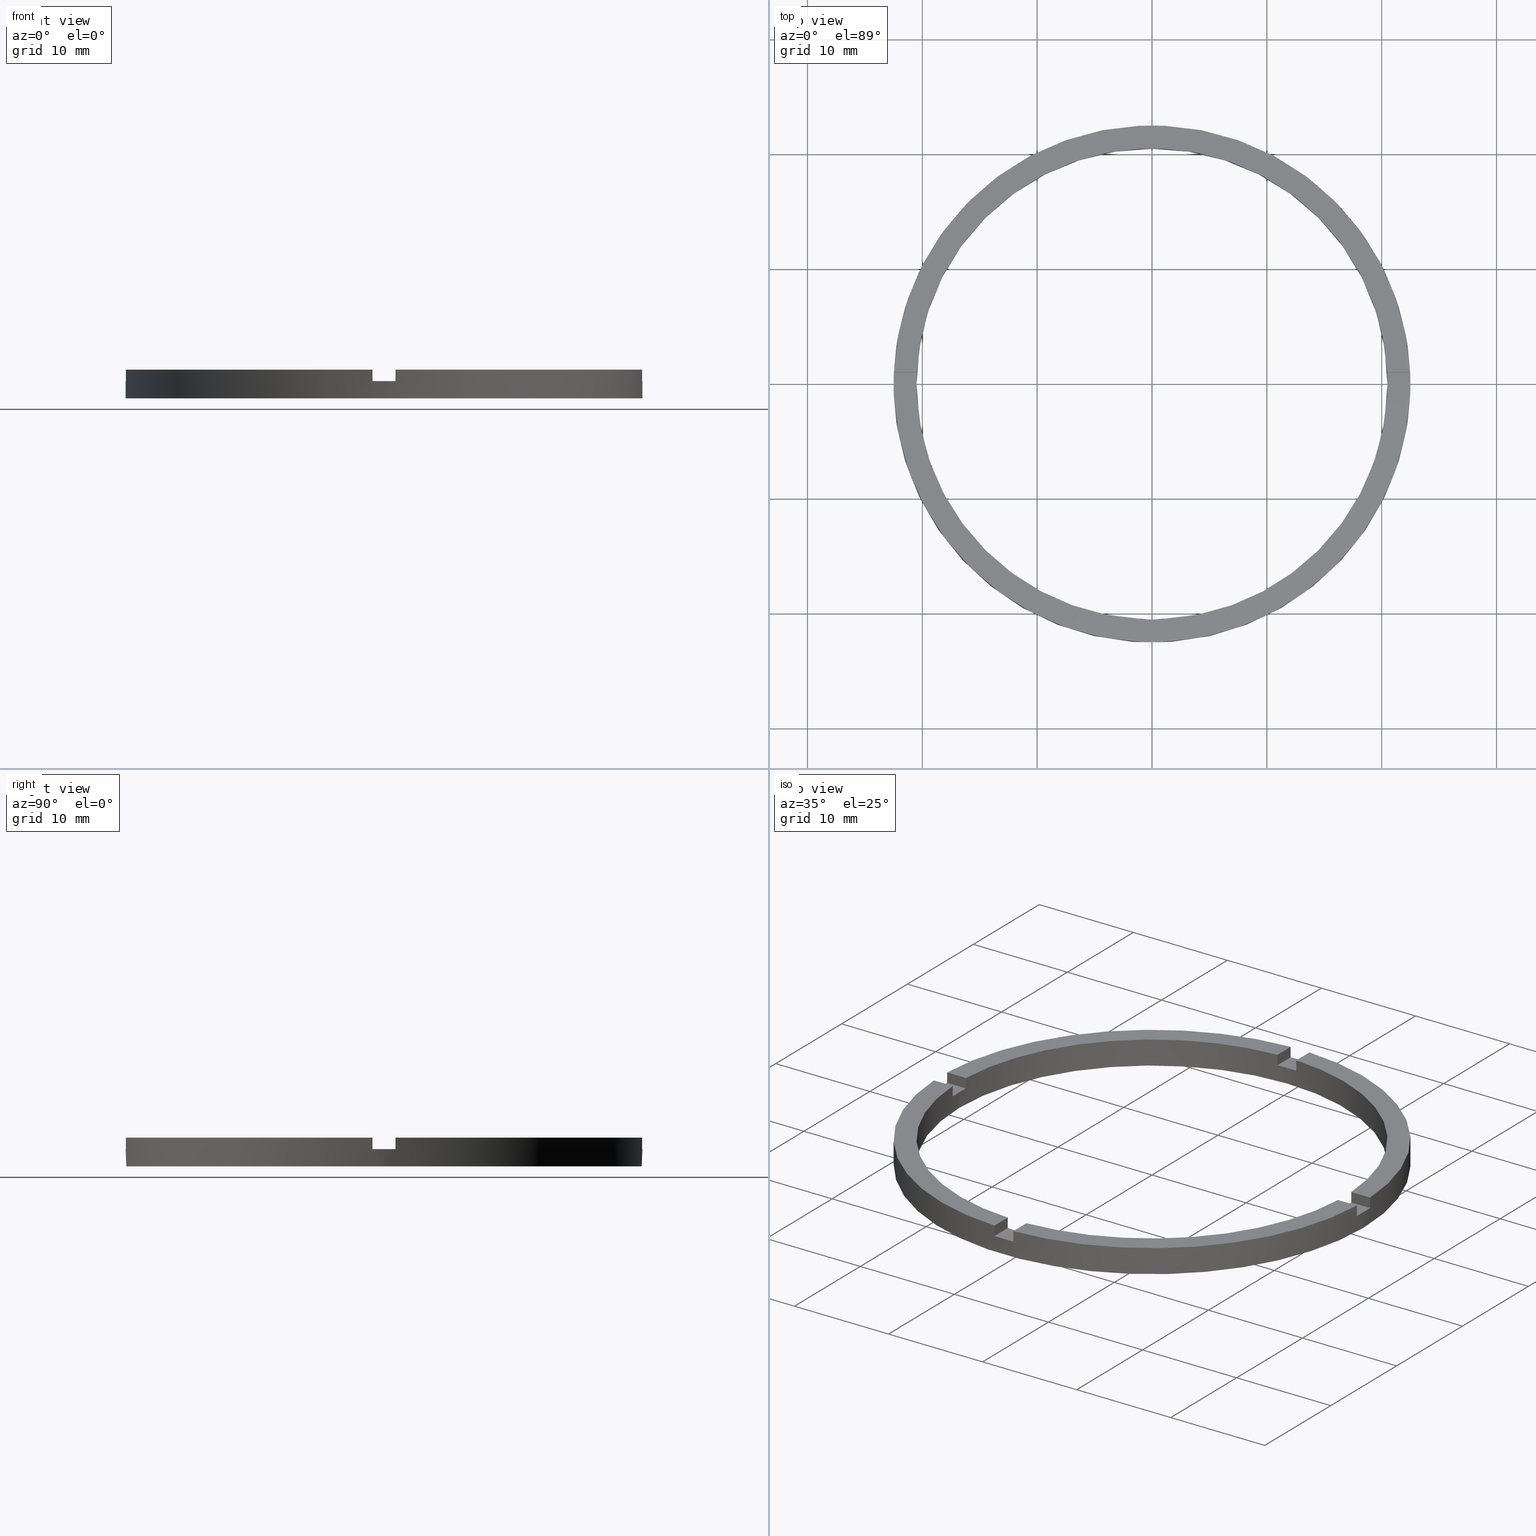
[diagram: canonical four-view strip — front | top / right | iso, engineering-drawing reading convention]
A machine part, canonical four-view strip (front | top / right | iso — engineering-drawing reading convention). The complete STEP part file that produces these views, byte-faithful:
ISO-10303-21;
HEADER;
FILE_DESCRIPTION (( 'STEP AP203' ),
    '1' );
FILE_NAME ('514094.step',
    '2024-12-26T02:36:57',
    ( 'MSI' ),
    ( '' ),
    'SwSTEP 2.0',
    'SolidWorks 2020',
    '' );
FILE_SCHEMA (( 'CONFIG_CONTROL_DESIGN' ));
ENDSEC;

DATA;
#1 = ORIENTED_EDGE ( 'NONE', *, *, #528, .T. ) ;
#2 = VECTOR ( 'NONE', #296, 1000.000000000000000 ) ;
#3 = DIRECTION ( 'NONE',  ( 1.000000000000000000, 0.000000000000000000, -0.000000000000000000 ) ) ;
#4 = EDGE_LOOP ( 'NONE', ( #435, #696, #80, #590, #433, #614 ) ) ;
#5 = CC_DESIGN_APPROVAL ( #569, ( #417 ) ) ;
#6 = CIRCLE ( 'NONE', #395, 20.50000000000000000 ) ;
#7 = EDGE_LOOP ( 'NONE', ( #562, #1, #261, #535 ) ) ;
#8 = LINE ( 'NONE', #312, #280 ) ;
#9 = APPLICATION_PROTOCOL_DEFINITION ( 'international standard', 'config_control_design', 1994, #136 ) ;
#10 = CC_DESIGN_DATE_AND_TIME_ASSIGNMENT ( #449, #110, ( #600 ) ) ;
#11 = CIRCLE ( 'NONE', #680, 22.50000000000000355 ) ;
#12 = VECTOR ( 'NONE', #476, 1000.000000000000000 ) ;
#13 = FACE_OUTER_BOUND ( 'NONE', #331, .T. ) ;
#14 = EDGE_CURVE ( 'NONE', #783, #241, #328, .T. ) ;
#15 = ADVANCED_FACE ( 'NONE', ( #58 ), #309, .T. ) ;
#16 = CIRCLE ( 'NONE', #460, 22.50000000000000355 ) ;
#17 = EDGE_LOOP ( 'NONE', ( #576, #514, #577, #518, #505, #561, #294, #511, #270, #752, #245, #510 ) ) ;
#18 = LINE ( 'NONE', #513, #306 ) ;
#19 = DIRECTION ( 'NONE',  ( -0.000000000000000000, -0.000000000000000000, -1.000000000000000000 ) ) ;
#20 = CC_DESIGN_DATE_AND_TIME_ASSIGNMENT ( #702, #254, ( #417 ) ) ;
#21 = ORIENTED_EDGE ( 'NONE', *, *, #684, .T. ) ;
#22 = VECTOR ( 'NONE', #174, 1000.000000000000000 ) ;
#23 = ORIENTED_EDGE ( 'NONE', *, *, #580, .F. ) ;
#24 = LINE ( 'NONE', #724, #22 ) ;
#25 = VERTEX_POINT ( 'NONE', #86 ) ;
#26 = VERTEX_POINT ( 'NONE', #678 ) ;
#27 = DIRECTION ( 'NONE',  ( 1.000000000000000000, 0.000000000000000000, -0.000000000000000000 ) ) ;
#28 = LINE ( 'NONE', #652, #582 ) ;
#29 = DIRECTION ( 'NONE',  ( 1.000000000000000000, 0.000000000000000000, 0.000000000000000000 ) ) ;
#30 = AXIS2_PLACEMENT_3D ( 'NONE', #184, #646, #310 ) ;
#31 = ORIENTED_EDGE ( 'NONE', *, *, #754, .T. ) ;
#32 = ORIENTED_EDGE ( 'NONE', *, *, #408, .T. ) ;
#33 = CIRCLE ( 'NONE', #207, 22.50000000000000355 ) ;
#34 = ORIENTED_EDGE ( 'NONE', *, *, #643, .T. ) ;
#35 = EDGE_CURVE ( 'NONE', #532, #731, #609, .T. ) ;
#36 = LINE ( 'NONE', #257, #12 ) ;
#37 = CARTESIAN_POINT ( 'NONE',  ( -22.47776679298902636, 0.9999999999999746869, 2.500000000000000000 ) ) ;
#38 = ORIENTED_EDGE ( 'NONE', *, *, #462, .F. ) ;
#39 = CIRCLE ( 'NONE', #140, 22.50000000000000355 ) ;
#40 = DIRECTION ( 'NONE',  ( 0.000000000000000000, 0.000000000000000000, 1.000000000000000000 ) ) ;
#41 = CIRCLE ( 'NONE', #583, 20.50000000000000000 ) ;
#42 = DIRECTION ( 'NONE',  ( -0.000000000000000000, -0.000000000000000000, -1.000000000000000000 ) ) ;
#43 = ORIENTED_EDGE ( 'NONE', *, *, #492, .T. ) ;
#44 = FACE_BOUND ( 'NONE', #208, .T. ) ;
#45 = VECTOR ( 'NONE', #666, 1000.000000000000000 ) ;
#46 = DIRECTION ( 'NONE',  ( 1.000000000000000000, 0.000000000000000000, 0.000000000000000000 ) ) ;
#47 = FACE_OUTER_BOUND ( 'NONE', #729, .T. ) ;
#48 = EDGE_CURVE ( 'NONE', #26, #205, #332, .T. ) ;
#49 = CARTESIAN_POINT ( 'NONE',  ( -22.50000000000000355, 0.000000000000000000, 0.000000000000000000 ) ) ;
#50 = FACE_OUTER_BOUND ( 'NONE', #544, .T. ) ;
#51 = CARTESIAN_POINT ( 'NONE',  ( 0.000000000000000000, 0.000000000000000000, 2.500000000000000000 ) ) ;
#52 = VERTEX_POINT ( 'NONE', #613 ) ;
#53 = EDGE_LOOP ( 'NONE', ( #351, #589, #71, #181 ) ) ;
#54 = FACE_OUTER_BOUND ( 'NONE', #477, .T. ) ;
#55 = CARTESIAN_POINT ( 'NONE',  ( 0.000000000000000000, 0.000000000000000000, 1.500000000000000000 ) ) ;
#56 = ORIENTED_EDGE ( 'NONE', *, *, #228, .T. ) ;
#57 = DIRECTION ( 'NONE',  ( 0.000000000000000000, 0.000000000000000000, 1.000000000000000000 ) ) ;
#58 = FACE_OUTER_BOUND ( 'NONE', #4, .T. ) ;
#59 = CARTESIAN_POINT ( 'NONE',  ( -20.47559522944326815, -1.000000000000024869, 1.500000000000000000 ) ) ;
#60 = FACE_OUTER_BOUND ( 'NONE', #758, .T. ) ;
#61 = CARTESIAN_POINT ( 'NONE',  ( 0.000000000000000000, 0.000000000000000000, 2.500000000000000000 ) ) ;
#62 = ADVANCED_BREP_SHAPE_REPRESENTATION ( '514094', ( #442, #362 ), #230 ) ;
#63 = ORIENTED_EDGE ( 'NONE', *, *, #143, .T. ) ;
#64 = CARTESIAN_POINT ( 'NONE',  ( -22.47776679298902636, -1.000000000000025313, 2.500000000000000000 ) ) ;
#65 = CIRCLE ( 'NONE', #380, 22.50000000000000355 ) ;
#66 = AXIS2_PLACEMENT_3D ( 'NONE', #670, #131, #385 ) ;
#67 = ORIENTED_EDGE ( 'NONE', *, *, #633, .F. ) ;
#68 = DIRECTION ( 'NONE',  ( 0.000000000000000000, 0.000000000000000000, 1.000000000000000000 ) ) ;
#69 = VECTOR ( 'NONE', #479, 1000.000000000000000 ) ;
#70 = DIRECTION ( 'NONE',  ( -0.000000000000000000, -0.000000000000000000, -1.000000000000000000 ) ) ;
#71 = ORIENTED_EDGE ( 'NONE', *, *, #354, .F. ) ;
#72 = APPLICATION_PROTOCOL_DEFINITION ( 'international standard', 'config_control_design', 1994, #452 ) ;
#73 = LINE ( 'NONE', #290, #69 ) ;
#74 = LINE ( 'NONE', #345, #334 ) ;
#75 = LINE ( 'NONE', #493, #611 ) ;
#76 = CARTESIAN_POINT ( 'NONE',  ( 0.000000000000000000, 0.000000000000000000, 2.500000000000000000 ) ) ;
#77 = ORIENTED_EDGE ( 'NONE', *, *, #299, .T. ) ;
#78 = CARTESIAN_POINT ( 'NONE',  ( -20.47559522944327171, 0.9999999999999751310, 1.500000000000000000 ) ) ;
#79 = ORIENTED_EDGE ( 'NONE', *, *, #48, .T. ) ;
#80 = ORIENTED_EDGE ( 'NONE', *, *, #664, .T. ) ;
#81 = VECTOR ( 'NONE', #145, 1000.000000000000000 ) ;
#82 = AXIS2_PLACEMENT_3D ( 'NONE', #129, #631, #180 ) ;
#83 = ORIENTED_EDGE ( 'NONE', *, *, #216, .F. ) ;
#84 = LINE ( 'NONE', #458, #87 ) ;
#85 = CC_DESIGN_PERSON_AND_ORGANIZATION_ASSIGNMENT ( #695, #686, ( #164 ) ) ;
#86 = CARTESIAN_POINT ( 'NONE',  ( -20.47559522944326815, -1.000000000000024869, 2.500000000000000000 ) ) ;
#87 = VECTOR ( 'NONE', #151, 1000.000000000000000 ) ;
#88 = CARTESIAN_POINT ( 'NONE',  ( 0.000000000000000000, 0.000000000000000000, 2.500000000000000000 ) ) ;
#89 = VECTOR ( 'NONE', #137, 1000.000000000000000 ) ;
#90 = EDGE_CURVE ( 'NONE', #502, #196, #594, .T. ) ;
#91 = LINE ( 'NONE', #685, #603 ) ;
#92 = AXIS2_PLACEMENT_3D ( 'NONE', #741, #781, #104 ) ;
#93 = VECTOR ( 'NONE', #641, 1000.000000000000000 ) ;
#94 = DIRECTION ( 'NONE',  ( -1.000000000000000000, -1.734723475976806848E-16, 0.000000000000000000 ) ) ;
#95 = ORIENTED_EDGE ( 'NONE', *, *, #299, .F. ) ;
#96 = VECTOR ( 'NONE', #526, 1000.000000000000000 ) ;
#97 = ORIENTED_EDGE ( 'NONE', *, *, #515, .F. ) ;
#98 = FACE_OUTER_BOUND ( 'NONE', #203, .T. ) ;
#99 = VERTEX_POINT ( 'NONE', #127 ) ;
#100 = CIRCLE ( 'NONE', #118, 20.50000000000000000 ) ;
#101 = ADVANCED_FACE ( 'NONE', ( #323 ), #375, .F. ) ;
#102 = LINE ( 'NONE', #222, #109 ) ;
#103 = CIRCLE ( 'NONE', #177, 20.50000000000000000 ) ;
#104 = DIRECTION ( 'NONE',  ( -1.000000000000000000, 0.000000000000000000, 0.000000000000000000 ) ) ;
#105 = VECTOR ( 'NONE', #422, 1000.000000000000000 ) ;
#106 = LINE ( 'NONE', #273, #632 ) ;
#107 = FACE_OUTER_BOUND ( 'NONE', #389, .T. ) ;
#108 = ADVANCED_FACE ( 'NONE', ( #60 ), #336, .T. ) ;
#109 = VECTOR ( 'NONE', #418, 1000.000000000000000 ) ;
#110 = DATE_TIME_ROLE ( 'classification_date' ) ;
#111 = PRODUCT_RELATED_PRODUCT_CATEGORY ( 'detail', '', ( #163 ) ) ;
#112 = DIRECTION ( 'NONE',  ( 1.000000000000000000, 0.000000000000000000, 0.000000000000000000 ) ) ;
#113 = ADVANCED_FACE ( 'NONE', ( #599 ), #650, .T. ) ;
#114 = APPROVAL_STATUS ( 'not_yet_approved' ) ;
#115 = EDGE_LOOP ( 'NONE', ( #34, #43, #244, #568 ) ) ;
#116 = CARTESIAN_POINT ( 'NONE',  ( 0.000000000000000000, 0.000000000000000000, 1.500000000000000000 ) ) ;
#117 = DIRECTION ( 'NONE',  ( 1.000000000000000000, 1.734723475976806848E-16, -0.000000000000000000 ) ) ;
#118 = AXIS2_PLACEMENT_3D ( 'NONE', #173, #231, #714 ) ;
#119 = DIRECTION ( 'NONE',  ( 1.000000000000000000, 0.000000000000000000, 0.000000000000000000 ) ) ;
#120 = CARTESIAN_POINT ( 'NONE',  ( 12.49999999999999645, -1.000000000000158540, 2.500000000000000000 ) ) ;
#121 = DIRECTION ( 'NONE',  ( 1.000000000000000000, 0.000000000000000000, -0.000000000000000000 ) ) ;
#122 = EDGE_CURVE ( 'NONE', #52, #286, #617, .T. ) ;
#123 =( NAMED_UNIT ( * ) SI_UNIT ( $, .STERADIAN. ) SOLID_ANGLE_UNIT ( ) );
#124 = AXIS2_PLACEMENT_3D ( 'NONE', #133, #227, #625 ) ;
#125 = CARTESIAN_POINT ( 'NONE',  ( 0.000000000000000000, 0.000000000000000000, 2.500000000000000000 ) ) ;
#126 = CARTESIAN_POINT ( 'NONE',  ( 0.000000000000000000, 0.000000000000000000, 2.500000000000000000 ) ) ;
#127 = CARTESIAN_POINT ( 'NONE',  ( -1.000000000000160982, -22.47776679298901570, 1.500000000000000000 ) ) ;
#128 = AXIS2_PLACEMENT_3D ( 'NONE', #326, #248, #3 ) ;
#129 = CARTESIAN_POINT ( 'NONE',  ( 0.000000000000000000, 0.000000000000000000, 1.500000000000000000 ) ) ;
#130 = PLANE ( 'NONE',  #463 ) ;
#131 = DIRECTION ( 'NONE',  ( 1.000000000000000000, 1.301042606982605074E-16, 0.000000000000000000 ) ) ;
#132 = EDGE_CURVE ( 'NONE', #716, #565, #342, .T. ) ;
#133 = CARTESIAN_POINT ( 'NONE',  ( 0.000000000000000000, 0.000000000000000000, 0.000000000000000000 ) ) ;
#134 = CARTESIAN_POINT ( 'NONE',  ( 0.000000000000000000, 0.000000000000000000, 0.000000000000000000 ) ) ;
#135 = DIRECTION ( 'NONE',  ( -1.000000000000000000, -4.336808689942017120E-17, -0.000000000000000000 ) ) ;
#136 = APPLICATION_CONTEXT ( 'configuration controlled 3d designs of mechanical parts and assemblies' ) ;
#137 = DIRECTION ( 'NONE',  ( -0.000000000000000000, -0.000000000000000000, -1.000000000000000000 ) ) ;
#138 = EDGE_CURVE ( 'NONE', #542, #369, #91, .T. ) ;
#139 = CARTESIAN_POINT ( 'NONE',  ( -1.000000000000161204, -20.47559522944325749, 1.500000000000000000 ) ) ;
#140 = AXIS2_PLACEMENT_3D ( 'NONE', #660, #409, #46 ) ;
#141 = CARTESIAN_POINT ( 'NONE',  ( -1.000000000000025757, 22.47776679298902636, 2.500000000000000000 ) ) ;
#142 = EDGE_CURVE ( 'NONE', #52, #242, #65, .T. ) ;
#143 = EDGE_CURVE ( 'NONE', #740, #783, #75, .T. ) ;
#144 = ADVANCED_FACE ( 'NONE', ( #54 ), #679, .F. ) ;
#145 = DIRECTION ( 'NONE',  ( -0.000000000000000000, -0.000000000000000000, -1.000000000000000000 ) ) ;
#146 = ADVANCED_FACE ( 'NONE', ( #327 ), #734, .T. ) ;
#147 = DESIGN_CONTEXT ( 'detailed design', #452, 'design' ) ;
#148 = AXIS2_PLACEMENT_3D ( 'NONE', #116, #654, #401 ) ;
#149 = CARTESIAN_POINT ( 'NONE',  ( -1.000000000000161426, -22.47776679298901925, 2.500000000000000000 ) ) ;
#150 = CARTESIAN_POINT ( 'NONE',  ( 0.000000000000000000, 0.000000000000000000, 1.500000000000000000 ) ) ;
#151 = DIRECTION ( 'NONE',  ( -0.000000000000000000, -0.000000000000000000, -1.000000000000000000 ) ) ;
#152 = CARTESIAN_POINT ( 'NONE',  ( 22.47776679298903346, 0.9999999999998419042, 1.500000000000000000 ) ) ;
#153 =( NAMED_UNIT ( * ) PLANE_ANGLE_UNIT ( ) SI_UNIT ( $, .RADIAN. ) );
#154 = CARTESIAN_POINT ( 'NONE',  ( 20.47559522944327881, 0.9999999999998419042, 2.500000000000000000 ) ) ;
#155 = CARTESIAN_POINT ( 'NONE',  ( 20.50000000000000000, 2.510525938252074481E-15, 0.000000000000000000 ) ) ;
#156 = APPROVAL ( #592, 'δָ��' ) ;
#157 = PERSON_AND_ORGANIZATION ( #387, #424 ) ;
#158 = CARTESIAN_POINT ( 'NONE',  ( -1.000000000000161204, -20.47559522944325749, 2.500000000000000000 ) ) ;
#159 = DIRECTION ( 'NONE',  ( 0.000000000000000000, 0.000000000000000000, 1.000000000000000000 ) ) ;
#160 = CALENDAR_DATE ( 2024, 26, 12 ) ;
#161 = CARTESIAN_POINT ( 'NONE',  ( 0.9999999999999742428, 12.50000000000000178, 1.500000000000000000 ) ) ;
#162 = PERSON_AND_ORGANIZATION ( #387, #424 ) ;
#163 = PRODUCT ( '514094', '514094', '', ( #251 ) ) ;
#164 = PRODUCT_DEFINITION_FORMATION_WITH_SPECIFIED_SOURCE ( '�κ�', '', #163, .NOT_KNOWN. ) ;
#165 = CARTESIAN_POINT ( 'NONE',  ( -20.47559522944327171, 0.9999999999999751310, 2.500000000000000000 ) ) ;
#166 = DIRECTION ( 'NONE',  ( 0.000000000000000000, 1.000000000000000000, 0.000000000000000000 ) ) ;
#167 = APPROVAL_PERSON_ORGANIZATION ( #162, #156, #343 ) ;
#168 = CLOSED_SHELL ( 'NONE', ( #508, #108, #113, #146, #195, #201, #649, #578, #397, #199, #250, #15, #744, #747, #588, #399, #653, #687, #144, #101, #325 ) ) ;
#169 = ORIENTED_EDGE ( 'NONE', *, *, #591, .T. ) ;
#170 = APPROVAL_DATE_TIME ( #420, #569 ) ;
#171 = ORIENTED_EDGE ( 'NONE', *, *, #48, .F. ) ;
#172 = LOCAL_TIME ( 10, 36, 57.00000000000000000, #697 ) ;
#173 = CARTESIAN_POINT ( 'NONE',  ( 0.000000000000000000, 0.000000000000000000, 1.500000000000000000 ) ) ;
#174 = DIRECTION ( 'NONE',  ( 1.301042606982605074E-16, -1.000000000000000000, 0.000000000000000000 ) ) ;
#175 = LOCAL_TIME ( 10, 36, 57.00000000000000000, #430 ) ;
#176 = EDGE_CURVE ( 'NONE', #221, #725, #601, .T. ) ;
#177 = AXIS2_PLACEMENT_3D ( 'NONE', #371, #40, #774 ) ;
#178 = ORIENTED_EDGE ( 'NONE', *, *, #432, .F. ) ;
#179 = APPROVAL_DATE_TIME ( #434, #156 ) ;
#180 = DIRECTION ( 'NONE',  ( 1.000000000000000000, 0.000000000000000000, 0.000000000000000000 ) ) ;
#181 = ORIENTED_EDGE ( 'NONE', *, *, #769, .T. ) ;
#182 = CARTESIAN_POINT ( 'NONE',  ( -22.47776679298902636, 0.9999999999999746869, 2.500000000000000000 ) ) ;
#183 = CARTESIAN_POINT ( 'NONE',  ( 20.47559522944327881, 0.9999999999998419042, 2.500000000000000000 ) ) ;
#184 = CARTESIAN_POINT ( 'NONE',  ( -1.000000000000025757, 12.50000000000000178, 1.500000000000000000 ) ) ;
#185 = LOCAL_TIME ( 10, 36, 57.00000000000000000, #187 ) ;
#186 = DIRECTION ( 'NONE',  ( -0.000000000000000000, -0.000000000000000000, -1.000000000000000000 ) ) ;
#187 = COORDINATED_UNIVERSAL_TIME_OFFSET ( 8, 0, .AHEAD. ) ;
#188 = PERSON_AND_ORGANIZATION_ROLE ( 'classification_officer' ) ;
#189 = CARTESIAN_POINT ( 'NONE',  ( -20.50000000000000000, 0.000000000000000000, 2.500000000000000000 ) ) ;
#190 = CARTESIAN_POINT ( 'NONE',  ( 0.000000000000000000, 0.000000000000000000, 0.000000000000000000 ) ) ;
#191 = CARTESIAN_POINT ( 'NONE',  ( 0.000000000000000000, 0.000000000000000000, 1.500000000000000000 ) ) ;
#192 = CARTESIAN_POINT ( 'NONE',  ( 0.000000000000000000, 0.000000000000000000, 2.500000000000000000 ) ) ;
#193 = EDGE_CURVE ( 'NONE', #52, #559, #73, .T. ) ;
#194 = DIRECTION ( 'NONE',  ( 1.000000000000000000, -0.000000000000000000, 0.000000000000000000 ) ) ;
#195 = ADVANCED_FACE ( 'NONE', ( #349 ), #225, .T. ) ;
#196 = VERTEX_POINT ( 'NONE', #59 ) ;
#197 = DIRECTION ( 'NONE',  ( 1.734723475976806848E-16, -1.000000000000000000, 0.000000000000000000 ) ) ;
#198 = AXIS2_PLACEMENT_3D ( 'NONE', #707, #490, #723 ) ;
#199 = ADVANCED_FACE ( 'NONE', ( #338 ), #648, .F. ) ;
#200 = ORIENTED_EDGE ( 'NONE', *, *, #746, .T. ) ;
#201 = ADVANCED_FACE ( 'NONE', ( #333 ), #743, .T. ) ;
#202 = ORIENTED_EDGE ( 'NONE', *, *, #585, .F. ) ;
#203 = EDGE_LOOP ( 'NONE', ( #178, #574, #301, #446, #67, #56, #359, #31, #564, #169, #204, #457 ) ) ;
#204 = ORIENTED_EDGE ( 'NONE', *, *, #247, .T. ) ;
#205 = VERTEX_POINT ( 'NONE', #512 ) ;
#206 = PERSON_AND_ORGANIZATION_ROLE ( 'creator' ) ;
#207 = AXIS2_PLACEMENT_3D ( 'NONE', #775, #416, #626 ) ;
#208 = EDGE_LOOP ( 'NONE', ( #612, #466 ) ) ;
#209 = CARTESIAN_POINT ( 'NONE',  ( 0.9999999999999742428, 20.47559522944327171, 2.500000000000000000 ) ) ;
#210 = ORIENTED_EDGE ( 'NONE', *, *, #515, .T. ) ;
#211 = ORIENTED_EDGE ( 'NONE', *, *, #329, .T. ) ;
#212 = APPROVAL_ROLE ( '' ) ;
#213 = AXIS2_PLACEMENT_3D ( 'NONE', #665, #718, #759 ) ;
#214 = DIRECTION ( 'NONE',  ( 0.000000000000000000, 0.000000000000000000, 1.000000000000000000 ) ) ;
#215 = DIRECTION ( 'NONE',  ( 0.000000000000000000, 0.000000000000000000, 1.000000000000000000 ) ) ;
#216 = EDGE_CURVE ( 'NONE', #639, #242, #74, .T. ) ;
#217 = DIRECTION ( 'NONE',  ( 1.000000000000000000, 0.000000000000000000, 0.000000000000000000 ) ) ;
#218 = DIRECTION ( 'NONE',  ( 0.000000000000000000, 0.000000000000000000, 1.000000000000000000 ) ) ;
#219 = ORIENTED_EDGE ( 'NONE', *, *, #661, .F. ) ;
#220 = ORIENTED_EDGE ( 'NONE', *, *, #132, .F. ) ;
#221 = VERTEX_POINT ( 'NONE', #252 ) ;
#222 = CARTESIAN_POINT ( 'NONE',  ( -1.000000000000025757, 20.47559522944326815, 2.500000000000000000 ) ) ;
#223 = CARTESIAN_POINT ( 'NONE',  ( -20.47559522944327171, 0.9999999999999751310, 2.500000000000000000 ) ) ;
#224 = ORIENTED_EDGE ( 'NONE', *, *, #421, .F. ) ;
#225 = PLANE ( 'NONE',  #240 ) ;
#226 = ORIENTED_EDGE ( 'NONE', *, *, #738, .F. ) ;
#227 = DIRECTION ( 'NONE',  ( 0.000000000000000000, 0.000000000000000000, 1.000000000000000000 ) ) ;
#228 = EDGE_CURVE ( 'NONE', #221, #776, #340, .T. ) ;
#229 = DIRECTION ( 'NONE',  ( 0.000000000000000000, 0.000000000000000000, 1.000000000000000000 ) ) ;
#230 =( GEOMETRIC_REPRESENTATION_CONTEXT ( 3 ) GLOBAL_UNCERTAINTY_ASSIGNED_CONTEXT ( ( #645 ) ) GLOBAL_UNIT_ASSIGNED_CONTEXT ( ( #703, #153, #123 ) ) REPRESENTATION_CONTEXT ( 'NONE', 'WORKASPACE' ) );
#231 = DIRECTION ( 'NONE',  ( 0.000000000000000000, 0.000000000000000000, 1.000000000000000000 ) ) ;
#232 = CARTESIAN_POINT ( 'NONE',  ( 0.9999999999998382405, -22.47776679298902991, 2.500000000000000000 ) ) ;
#233 = CARTESIAN_POINT ( 'NONE',  ( 12.49999999999999645, 0.9999999999998414602, 1.500000000000000000 ) ) ;
#234 = DIRECTION ( 'NONE',  ( 1.000000000000000000, 0.000000000000000000, 0.000000000000000000 ) ) ;
#235 = DIRECTION ( 'NONE',  ( -1.301042606982605074E-16, 1.000000000000000000, -0.000000000000000000 ) ) ;
#236 = AXIS2_PLACEMENT_3D ( 'NONE', #125, #285, #663 ) ;
#237 = CARTESIAN_POINT ( 'NONE',  ( -1.000000000000160982, -22.47776679298901570, 2.500000000000000000 ) ) ;
#238 = EDGE_CURVE ( 'NONE', #246, #491, #84, .T. ) ;
#239 = DIRECTION ( 'NONE',  ( 0.000000000000000000, 0.000000000000000000, 1.000000000000000000 ) ) ;
#240 = AXIS2_PLACEMENT_3D ( 'NONE', #279, #667, #381 ) ;
#241 = VERTEX_POINT ( 'NONE', #353 ) ;
#242 = VERTEX_POINT ( 'NONE', #182 ) ;
#243 = VERTEX_POINT ( 'NONE', #550 ) ;
#244 = ORIENTED_EDGE ( 'NONE', *, *, #456, .F. ) ;
#245 = ORIENTED_EDGE ( 'NONE', *, *, #14, .T. ) ;
#246 = VERTEX_POINT ( 'NONE', #642 ) ;
#247 = EDGE_CURVE ( 'NONE', #502, #532, #618, .T. ) ;
#248 = DIRECTION ( 'NONE',  ( 0.000000000000000000, 0.000000000000000000, 1.000000000000000000 ) ) ;
#249 = APPROVAL_ROLE ( '' ) ;
#250 = ADVANCED_FACE ( 'NONE', ( #346 ), #436, .F. ) ;
#251 = MECHANICAL_CONTEXT ( 'NONE', #136, 'mechanical' ) ;
#252 = CARTESIAN_POINT ( 'NONE',  ( 0.9999999999999737987, 20.47559522944326815, 1.500000000000000000 ) ) ;
#253 = CARTESIAN_POINT ( 'NONE',  ( 22.47776679298901925, -1.000000000000158096, 1.500000000000000000 ) ) ;
#254 = DATE_TIME_ROLE ( 'creation_date' ) ;
#255 = DIRECTION ( 'NONE',  ( 0.000000000000000000, 0.000000000000000000, 1.000000000000000000 ) ) ;
#256 = EDGE_LOOP ( 'NONE', ( #63, #773, #501, #293 ) ) ;
#257 = CARTESIAN_POINT ( 'NONE',  ( 0.9999999999998386846, -22.47776679298903346, 2.500000000000000000 ) ) ;
#258 = ORIENTED_EDGE ( 'NONE', *, *, #429, .F. ) ;
#259 = VERTEX_POINT ( 'NONE', #677 ) ;
#260 = CARTESIAN_POINT ( 'NONE',  ( -1.000000000000025313, 20.47559522944326460, 1.500000000000000000 ) ) ;
#261 = ORIENTED_EDGE ( 'NONE', *, *, #228, .F. ) ;
#262 = CIRCLE ( 'NONE', #672, 22.50000000000000355 ) ;
#263 = ORIENTED_EDGE ( 'NONE', *, *, #132, .T. ) ;
#264 = LINE ( 'NONE', #736, #272 ) ;
#265 = EDGE_CURVE ( 'NONE', #369, #519, #621, .T. ) ;
#266 = CARTESIAN_POINT ( 'NONE',  ( 22.50000000000000355, 2.755455298081545172E-15, 0.000000000000000000 ) ) ;
#267 = DIRECTION ( 'NONE',  ( -0.000000000000000000, 0.000000000000000000, 1.000000000000000000 ) ) ;
#268 = VERTEX_POINT ( 'NONE', #779 ) ;
#269 = LINE ( 'NONE', #615, #45 ) ;
#270 = ORIENTED_EDGE ( 'NONE', *, *, #456, .T. ) ;
#271 = LINE ( 'NONE', #149, #307 ) ;
#272 = VECTOR ( 'NONE', #135, 1000.000000000000000 ) ;
#273 = CARTESIAN_POINT ( 'NONE',  ( -12.50000000000018829, -1.000000000000023759, 2.500000000000000000 ) ) ;
#274 = CARTESIAN_POINT ( 'NONE',  ( 0.000000000000000000, 0.000000000000000000, 1.500000000000000000 ) ) ;
#275 = FACE_OUTER_BOUND ( 'NONE', #115, .T. ) ;
#276 = EDGE_CURVE ( 'NONE', #461, #607, #311, .T. ) ;
#277 = VECTOR ( 'NONE', #117, 1000.000000000000000 ) ;
#278 = AXIS2_PLACEMENT_3D ( 'NONE', #682, #393, #94 ) ;
#279 = CARTESIAN_POINT ( 'NONE',  ( 0.000000000000000000, 0.000000000000000000, 2.500000000000000000 ) ) ;
#280 = VECTOR ( 'NONE', #730, 1000.000000000000000 ) ;
#281 = VERTEX_POINT ( 'NONE', #183 ) ;
#282 = VECTOR ( 'NONE', #218, 1000.000000000000000 ) ;
#283 = ORIENTED_EDGE ( 'NONE', *, *, #633, .T. ) ;
#284 = DIRECTION ( 'NONE',  ( 1.000000000000000000, 1.734723475976806848E-16, -0.000000000000000000 ) ) ;
#285 = DIRECTION ( 'NONE',  ( -0.000000000000000000, -0.000000000000000000, -1.000000000000000000 ) ) ;
#286 = VERTEX_POINT ( 'NONE', #668 ) ;
#287 = CYLINDRICAL_SURFACE ( 'NONE', #236, 22.50000000000000355 ) ;
#288 = ORIENTED_EDGE ( 'NONE', *, *, #485, .T. ) ;
#289 = ORIENTED_EDGE ( 'NONE', *, *, #698, .F. ) ;
#290 = CARTESIAN_POINT ( 'NONE',  ( -1.000000000000025757, 12.50000000000000178, 2.500000000000000000 ) ) ;
#291 = FACE_OUTER_BOUND ( 'NONE', #17, .T. ) ;
#292 = ORIENTED_EDGE ( 'NONE', *, *, #122, .T. ) ;
#293 = ORIENTED_EDGE ( 'NONE', *, *, #651, .F. ) ;
#294 = ORIENTED_EDGE ( 'NONE', *, *, #504, .T. ) ;
#295 = DIRECTION ( 'NONE',  ( 1.000000000000000000, 0.000000000000000000, 0.000000000000000000 ) ) ;
#296 = DIRECTION ( 'NONE',  ( -0.000000000000000000, -0.000000000000000000, -1.000000000000000000 ) ) ;
#297 = CIRCLE ( 'NONE', #517, 20.50000000000000000 ) ;
#298 = ORIENTED_EDGE ( 'NONE', *, *, #276, .F. ) ;
#299 = EDGE_CURVE ( 'NONE', #725, #205, #586, .T. ) ;
#300 = FACE_OUTER_BOUND ( 'NONE', #348, .T. ) ;
#301 = ORIENTED_EDGE ( 'NONE', *, *, #408, .F. ) ;
#302 = CIRCLE ( 'NONE', #525, 22.50000000000000355 ) ;
#303 = LINE ( 'NONE', #659, #277 ) ;
#304 = CARTESIAN_POINT ( 'NONE',  ( 0.000000000000000000, 0.000000000000000000, 1.500000000000000000 ) ) ;
#305 = PERSON_AND_ORGANIZATION_ROLE ( 'design_owner' ) ;
#306 = VECTOR ( 'NONE', #57, 1000.000000000000000 ) ;
#307 = VECTOR ( 'NONE', #411, 1000.000000000000000 ) ;
#308 = FACE_OUTER_BOUND ( 'NONE', #256, .T. ) ;
#309 = PLANE ( 'NONE',  #656 ) ;
#310 = DIRECTION ( 'NONE',  ( 0.000000000000000000, 0.000000000000000000, 1.000000000000000000 ) ) ;
#311 = CIRCLE ( 'NONE', #750, 22.50000000000000355 ) ;
#312 = CARTESIAN_POINT ( 'NONE',  ( -1.000000000000025757, 12.50000000000000178, 1.500000000000000000 ) ) ;
#313 = DIRECTION ( 'NONE',  ( 0.000000000000000000, 0.000000000000000000, 1.000000000000000000 ) ) ;
#314 = ORIENTED_EDGE ( 'NONE', *, *, #664, .F. ) ;
#315 = EDGE_CURVE ( 'NONE', #725, #286, #364, .T. ) ;
#316 = ORIENTED_EDGE ( 'NONE', *, *, #748, .F. ) ;
#317 = EDGE_LOOP ( 'NONE', ( #604, #521, #314, #623 ) ) ;
#318 = DIRECTION ( 'NONE',  ( 1.000000000000000000, 0.000000000000000000, 0.000000000000000000 ) ) ;
#319 = DIRECTION ( 'NONE',  ( 0.000000000000000000, 0.000000000000000000, 1.000000000000000000 ) ) ;
#320 = AXIS2_PLACEMENT_3D ( 'NONE', #88, #186, #676 ) ;
#321 = ORIENTED_EDGE ( 'NONE', *, *, #585, .T. ) ;
#322 = ORIENTED_EDGE ( 'NONE', *, *, #698, .T. ) ;
#323 = FACE_OUTER_BOUND ( 'NONE', #531, .T. ) ;
#324 = ORIENTED_EDGE ( 'NONE', *, *, #651, .T. ) ;
#325 = ADVANCED_FACE ( 'NONE', ( #629 ), #761, .T. ) ;
#326 = CARTESIAN_POINT ( 'NONE',  ( 0.000000000000000000, 0.000000000000000000, 2.500000000000000000 ) ) ;
#327 = FACE_OUTER_BOUND ( 'NONE', #610, .T. ) ;
#328 = CIRCLE ( 'NONE', #498, 20.50000000000000000 ) ;
#329 = EDGE_CURVE ( 'NONE', #241, #565, #363, .T. ) ;
#330 = AXIS2_PLACEMENT_3D ( 'NONE', #55, #755, #546 ) ;
#331 = EDGE_LOOP ( 'NONE', ( #226, #484, #495, #289 ) ) ;
#332 = CIRCLE ( 'NONE', #404, 22.50000000000000355 ) ;
#333 = FACE_OUTER_BOUND ( 'NONE', #53, .T. ) ;
#334 = VECTOR ( 'NONE', #406, 1000.000000000000000 ) ;
#335 = ORIENTED_EDGE ( 'NONE', *, *, #193, .F. ) ;
#336 = CYLINDRICAL_SURFACE ( 'NONE', #92, 22.50000000000000355 ) ;
#337 = EDGE_CURVE ( 'NONE', #716, #461, #358, .T. ) ;
#338 = FACE_OUTER_BOUND ( 'NONE', #317, .T. ) ;
#339 = ORIENTED_EDGE ( 'NONE', *, *, #580, .T. ) ;
#340 = CIRCLE ( 'NONE', #148, 20.50000000000000000 ) ;
#341 = ORIENTED_EDGE ( 'NONE', *, *, #337, .F. ) ;
#342 = LINE ( 'NONE', #444, #597 ) ;
#343 = APPROVAL_ROLE ( '' ) ;
#344 = ORIENTED_EDGE ( 'NONE', *, *, #414, .F. ) ;
#345 = CARTESIAN_POINT ( 'NONE',  ( -12.50000000000018829, 0.9999999999999763522, 2.500000000000000000 ) ) ;
#346 = FACE_OUTER_BOUND ( 'NONE', #367, .T. ) ;
#347 = CARTESIAN_POINT ( 'NONE',  ( -12.50000000000018829, 0.9999999999999763522, 1.500000000000000000 ) ) ;
#348 = EDGE_LOOP ( 'NONE', ( #258, #464 ) ) ;
#349 = FACE_OUTER_BOUND ( 'NONE', #620, .T. ) ;
#350 = ORIENTED_EDGE ( 'NONE', *, *, #122, .F. ) ;
#351 = ORIENTED_EDGE ( 'NONE', *, *, #265, .F. ) ;
#352 = CIRCLE ( 'NONE', #124, 22.50000000000000355 ) ;
#353 = CARTESIAN_POINT ( 'NONE',  ( 20.47559522944326460, -1.000000000000158096, 2.500000000000000000 ) ) ;
#354 = EDGE_CURVE ( 'NONE', #268, #25, #106, .T. ) ;
#355 = ORIENTED_EDGE ( 'NONE', *, *, #778, .F. ) ;
#356 = CIRCLE ( 'NONE', #198, 20.50000000000000000 ) ;
#357 = CARTESIAN_POINT ( 'NONE',  ( 12.49999999999999645, -1.000000000000158540, 1.500000000000000000 ) ) ;
#358 = CIRCLE ( 'NONE', #772, 22.50000000000000355 ) ;
#359 = ORIENTED_EDGE ( 'NONE', *, *, #378, .F. ) ;
#360 = VECTOR ( 'NONE', #673, 1000.000000000000000 ) ;
#361 = DIRECTION ( 'NONE',  ( 0.000000000000000000, 0.000000000000000000, 1.000000000000000000 ) ) ;
#362 = AXIS2_PLACEMENT_3D ( 'NONE', #134, #313, #405 ) ;
#363 = LINE ( 'NONE', #120, #360 ) ;
#364 = CIRCLE ( 'NONE', #499, 22.50000000000000355 ) ;
#365 = DIRECTION ( 'NONE',  ( -1.000000000000000000, -4.336808689942017120E-17, -0.000000000000000000 ) ) ;
#366 = LINE ( 'NONE', #154, #635 ) ;
#367 = EDGE_LOOP ( 'NONE', ( #451, #288, #709, #355 ) ) ;
#368 = LINE ( 'NONE', #415, #638 ) ;
#369 = VERTEX_POINT ( 'NONE', #158 ) ;
#370 = LINE ( 'NONE', #536, #105 ) ;
#371 = CARTESIAN_POINT ( 'NONE',  ( 0.000000000000000000, 0.000000000000000000, 0.000000000000000000 ) ) ;
#372 = DIRECTION ( 'NONE',  ( -0.000000000000000000, 0.000000000000000000, 1.000000000000000000 ) ) ;
#373 = DIRECTION ( 'NONE',  ( 0.000000000000000000, 1.000000000000000000, 0.000000000000000000 ) ) ;
#374 = AXIS2_PLACEMENT_3D ( 'NONE', #596, #267, #112 ) ;
#375 = PLANE ( 'NONE',  #431 ) ;
#376 = EDGE_LOOP ( 'NONE', ( #344, #341, #263, #202, #324, #534, #322, #540, #200, #316, #450, #571 ) ) ;
#377 = PLANE ( 'NONE',  #497 ) ;
#378 = EDGE_CURVE ( 'NONE', #559, #776, #102, .T. ) ;
#379 = ORIENTED_EDGE ( 'NONE', *, *, #402, .T. ) ;
#380 = AXIS2_PLACEMENT_3D ( 'NONE', #76, #675, #552 ) ;
#381 = DIRECTION ( 'NONE',  ( 1.000000000000000000, 0.000000000000000000, -0.000000000000000000 ) ) ;
#382 = EDGE_CURVE ( 'NONE', #731, #532, #103, .T. ) ;
#383 = AXIS2_PLACEMENT_3D ( 'NONE', #304, #530, #217 ) ;
#384 = CARTESIAN_POINT ( 'NONE',  ( 0.000000000000000000, 0.000000000000000000, 1.500000000000000000 ) ) ;
#385 = DIRECTION ( 'NONE',  ( -1.301042606982605074E-16, 1.000000000000000000, 0.000000000000000000 ) ) ;
#386 = ORIENTED_EDGE ( 'NONE', *, *, #176, .F. ) ;
#387 = PERSON ( 'δָ��', 'δָ��', 'δָ��', ('δָ��'), ('δָ��'), ('δָ��') ) ;
#388 = CARTESIAN_POINT ( 'NONE',  ( 22.50000000000000355, 2.755455298081545172E-15, 1.500000000000000000 ) ) ;
#389 = EDGE_LOOP ( 'NONE', ( #210, #32, #219, #23 ) ) ;
#390 = CARTESIAN_POINT ( 'NONE',  ( 0.000000000000000000, 0.000000000000000000, 1.500000000000000000 ) ) ;
#391 = CARTESIAN_POINT ( 'NONE',  ( 0.000000000000000000, 0.000000000000000000, 1.500000000000000000 ) ) ;
#392 = APPROVAL ( #398, 'δָ��' ) ;
#393 = DIRECTION ( 'NONE',  ( -1.734723475976806848E-16, 1.000000000000000000, 0.000000000000000000 ) ) ;
#394 = CARTESIAN_POINT ( 'NONE',  ( 0.000000000000000000, 0.000000000000000000, 2.500000000000000000 ) ) ;
#395 = AXIS2_PLACEMENT_3D ( 'NONE', #61, #361, #119 ) ;
#396 = CARTESIAN_POINT ( 'NONE',  ( -12.50000000000018829, -1.000000000000023759, 1.500000000000000000 ) ) ;
#397 = ADVANCED_FACE ( 'NONE', ( #98 ), #634, .F. ) ;
#398 = APPROVAL_STATUS ( 'not_yet_approved' ) ;
#399 = ADVANCED_FACE ( 'NONE', ( #107 ), #130, .F. ) ;
#400 = CC_DESIGN_PERSON_AND_ORGANIZATION_ASSIGNMENT ( #699, #206, ( #164 ) ) ;
#401 = DIRECTION ( 'NONE',  ( 1.000000000000000000, 0.000000000000000000, 0.000000000000000000 ) ) ;
#402 = EDGE_CURVE ( 'NONE', #243, #716, #370, .T. ) ;
#403 = CARTESIAN_POINT ( 'NONE',  ( 0.9999999999999737987, 22.47776679298902280, 1.500000000000000000 ) ) ;
#404 = AXIS2_PLACEMENT_3D ( 'NONE', #472, #68, #524 ) ;
#405 = DIRECTION ( 'NONE',  ( 1.000000000000000000, 0.000000000000000000, 0.000000000000000000 ) ) ;
#406 = DIRECTION ( 'NONE',  ( -1.000000000000000000, -1.734723475976806848E-16, 0.000000000000000000 ) ) ;
#407 = PLANE ( 'NONE',  #742 ) ;
#408 = EDGE_CURVE ( 'NONE', #281, #471, #366, .T. ) ;
#409 = DIRECTION ( 'NONE',  ( 0.000000000000000000, 0.000000000000000000, 1.000000000000000000 ) ) ;
#410 = CARTESIAN_POINT ( 'NONE',  ( 0.9999999999998382405, -22.47776679298902991, 1.500000000000000000 ) ) ;
#411 = DIRECTION ( 'NONE',  ( 0.000000000000000000, 0.000000000000000000, 1.000000000000000000 ) ) ;
#412 = DIRECTION ( 'NONE',  ( -1.000000000000000000, 0.000000000000000000, 0.000000000000000000 ) ) ;
#413 = DIRECTION ( 'NONE',  ( 0.000000000000000000, 0.000000000000000000, 1.000000000000000000 ) ) ;
#414 = EDGE_CURVE ( 'NONE', #461, #467, #368, .T. ) ;
#415 = CARTESIAN_POINT ( 'NONE',  ( 22.50000000000000355, 2.755455298081545172E-15, 2.500000000000000000 ) ) ;
#416 = DIRECTION ( 'NONE',  ( 0.000000000000000000, 0.000000000000000000, 1.000000000000000000 ) ) ;
#417 = PRODUCT_DEFINITION ( 'δ֪', '', #164, #147 ) ;
#418 = DIRECTION ( 'NONE',  ( -0.000000000000000000, -0.000000000000000000, -1.000000000000000000 ) ) ;
#419 = CARTESIAN_POINT ( 'NONE',  ( 0.000000000000000000, 0.000000000000000000, 2.500000000000000000 ) ) ;
#420 = DATE_AND_TIME ( #688, #172 ) ;
#421 = EDGE_CURVE ( 'NONE', #636, #471, #640, .T. ) ;
#422 = DIRECTION ( 'NONE',  ( 1.000000000000000000, 4.336808689942017120E-17, 0.000000000000000000 ) ) ;
#423 = SECURITY_CLASSIFICATION_LEVEL ( 'unclassified' ) ;
#424 = ORGANIZATION ( 'δָ��', 'δָ��', '' ) ;
#425 = PERSON_AND_ORGANIZATION ( #387, #424 ) ;
#426 = APPROVAL_DATE_TIME ( #706, #392 ) ;
#427 = CALENDAR_DATE ( 2024, 26, 12 ) ;
#428 = DIRECTION ( 'NONE',  ( 0.000000000000000000, 0.000000000000000000, 1.000000000000000000 ) ) ;
#429 = EDGE_CURVE ( 'NONE', #491, #467, #352, .T. ) ;
#430 = COORDINATED_UNIVERSAL_TIME_OFFSET ( 8, 0, .AHEAD. ) ;
#431 = AXIS2_PLACEMENT_3D ( 'NONE', #622, #194, #745 ) ;
#432 = EDGE_CURVE ( 'NONE', #636, #731, #627, .T. ) ;
#433 = ORIENTED_EDGE ( 'NONE', *, *, #591, .F. ) ;
#434 = DATE_AND_TIME ( #427, #175 ) ;
#435 = ORIENTED_EDGE ( 'NONE', *, *, #539, .T. ) ;
#436 = PLANE ( 'NONE',  #278 ) ;
#437 = CALENDAR_DATE ( 2024, 26, 12 ) ;
#438 = ORIENTED_EDGE ( 'NONE', *, *, #142, .T. ) ;
#439 = LOCAL_TIME ( 10, 36, 57.00000000000000000, #705 ) ;
#440 = DIRECTION ( 'NONE',  ( 1.000000000000000000, 1.734723475976806848E-16, 0.000000000000000000 ) ) ;
#441 = LOCAL_TIME ( 10, 36, 57.00000000000000000, #691 ) ;
#442 = MANIFOLD_SOLID_BREP ( '�г�-����1', #168 ) ;
#443 = APPROVAL_PERSON_ORGANIZATION ( #157, #392, #249 ) ;
#444 = CARTESIAN_POINT ( 'NONE',  ( 22.47776679298901925, -1.000000000000158096, 2.500000000000000000 ) ) ;
#445 = PERSON_AND_ORGANIZATION ( #387, #424 ) ;
#446 = ORIENTED_EDGE ( 'NONE', *, *, #462, .T. ) ;
#447 = EDGE_CURVE ( 'NONE', #243, #636, #100, .T. ) ;
#448 = SHAPE_DEFINITION_REPRESENTATION ( #473, #62 ) ;
#449 = DATE_AND_TIME ( #453, #185 ) ;
#450 = ORIENTED_EDGE ( 'NONE', *, *, #238, .T. ) ;
#451 = ORIENTED_EDGE ( 'NONE', *, *, #721, .F. ) ;
#452 = APPLICATION_CONTEXT ( 'configuration controlled 3d designs of mechanical parts and assemblies' ) ;
#453 = CALENDAR_DATE ( 2024, 26, 12 ) ;
#454 = CC_DESIGN_APPROVAL ( #392, ( #600 ) ) ;
#455 = CARTESIAN_POINT ( 'NONE',  ( 0.000000000000000000, 0.000000000000000000, 1.500000000000000000 ) ) ;
#456 = EDGE_CURVE ( 'NONE', #542, #782, #628, .T. ) ;
#457 = ORIENTED_EDGE ( 'NONE', *, *, #382, .F. ) ;
#458 = CARTESIAN_POINT ( 'NONE',  ( -22.50000000000000355, 0.000000000000000000, 2.500000000000000000 ) ) ;
#459 = CARTESIAN_POINT ( 'NONE',  ( -20.47559522944326815, -1.000000000000024869, 2.500000000000000000 ) ) ;
#460 = AXIS2_PLACEMENT_3D ( 'NONE', #391, #553, #780 ) ;
#461 = VERTEX_POINT ( 'NONE', #388 ) ;
#462 = EDGE_CURVE ( 'NONE', #281, #478, #356, .T. ) ;
#463 = AXIS2_PLACEMENT_3D ( 'NONE', #233, #475, #662 ) ;
#464 = ORIENTED_EDGE ( 'NONE', *, *, #771, .F. ) ;
#465 = CARTESIAN_POINT ( 'NONE',  ( 0.000000000000000000, 0.000000000000000000, 0.000000000000000000 ) ) ;
#466 = ORIENTED_EDGE ( 'NONE', *, *, #382, .T. ) ;
#467 = VERTEX_POINT ( 'NONE', #266 ) ;
#468 = CARTESIAN_POINT ( 'NONE',  ( 20.47559522944327881, 0.9999999999998419042, 1.500000000000000000 ) ) ;
#469 = DIRECTION ( 'NONE',  ( -1.000000000000000000, -1.734723475976806848E-16, 0.000000000000000000 ) ) ;
#470 = VERTEX_POINT ( 'NONE', #410 ) ;
#471 = VERTEX_POINT ( 'NONE', #468 ) ;
#472 = CARTESIAN_POINT ( 'NONE',  ( 0.000000000000000000, 0.000000000000000000, 2.500000000000000000 ) ) ;
#473 = PRODUCT_DEFINITION_SHAPE ( 'NONE', 'NONE',  #417 ) ;
#474 = AXIS2_PLACEMENT_3D ( 'NONE', #126, #229, #619 ) ;
#475 = DIRECTION ( 'NONE',  ( -4.336808689942017120E-17, 1.000000000000000000, 0.000000000000000000 ) ) ;
#476 = DIRECTION ( 'NONE',  ( -0.000000000000000000, -0.000000000000000000, -1.000000000000000000 ) ) ;
#477 = EDGE_LOOP ( 'NONE', ( #557, #733, #735, #350 ) ) ;
#478 = VERTEX_POINT ( 'NONE', #757 ) ;
#479 = DIRECTION ( 'NONE',  ( -0.000000000000000000, -1.000000000000000000, -0.000000000000000000 ) ) ;
#480 = ORIENTED_EDGE ( 'NONE', *, *, #671, .T. ) ;
#481 = DIRECTION ( 'NONE',  ( 0.000000000000000000, 0.000000000000000000, 1.000000000000000000 ) ) ;
#482 = DIRECTION ( 'NONE',  ( -1.000000000000000000, -1.301042606982605074E-16, 0.000000000000000000 ) ) ;
#483 = DIRECTION ( 'NONE',  ( 0.000000000000000000, 0.000000000000000000, 1.000000000000000000 ) ) ;
#484 = ORIENTED_EDGE ( 'NONE', *, *, #138, .T. ) ;
#485 = EDGE_CURVE ( 'NONE', #507, #639, #563, .T. ) ;
#486 = CARTESIAN_POINT ( 'NONE',  ( 0.000000000000000000, 0.000000000000000000, 2.500000000000000000 ) ) ;
#487 = CC_DESIGN_PERSON_AND_ORGANIZATION_ASSIGNMENT ( #425, #516, ( #417 ) ) ;
#488 = ORIENTED_EDGE ( 'NONE', *, *, #337, .T. ) ;
#489 = CC_DESIGN_SECURITY_CLASSIFICATION ( #600, ( #164 ) ) ;
#490 = DIRECTION ( 'NONE',  ( 0.000000000000000000, 0.000000000000000000, 1.000000000000000000 ) ) ;
#491 = VERTEX_POINT ( 'NONE', #49 ) ;
#492 = EDGE_CURVE ( 'NONE', #470, #782, #269, .T. ) ;
#493 = CARTESIAN_POINT ( 'NONE',  ( 0.9999999999998375744, -12.50000000000018296, 2.500000000000000000 ) ) ;
#494 = DIRECTION ( 'NONE',  ( 1.000000000000000000, 0.000000000000000000, 0.000000000000000000 ) ) ;
#495 = ORIENTED_EDGE ( 'NONE', *, *, #265, .T. ) ;
#496 = ORIENTED_EDGE ( 'NONE', *, *, #414, .T. ) ;
#497 = AXIS2_PLACEMENT_3D ( 'NONE', #455, #587, #749 ) ;
#498 = AXIS2_PLACEMENT_3D ( 'NONE', #419, #483, #234 ) ;
#499 = AXIS2_PLACEMENT_3D ( 'NONE', #150, #719, #295 ) ;
#500 = DIRECTION ( 'NONE',  ( 0.000000000000000000, 0.000000000000000000, 1.000000000000000000 ) ) ;
#501 = ORIENTED_EDGE ( 'NONE', *, *, #492, .F. ) ;
#502 = VERTEX_POINT ( 'NONE', #767 ) ;
#503 = DIRECTION ( 'NONE',  ( 0.000000000000000000, 0.000000000000000000, 1.000000000000000000 ) ) ;
#504 = EDGE_CURVE ( 'NONE', #25, #369, #41, .T. ) ;
#505 = ORIENTED_EDGE ( 'NONE', *, *, #90, .T. ) ;
#506 = EDGE_CURVE ( 'NONE', #783, #782, #579, .T. ) ;
#507 = VERTEX_POINT ( 'NONE', #78 ) ;
#508 = ADVANCED_FACE ( 'NONE', ( #291 ), #575, .F. ) ;
#509 = CARTESIAN_POINT ( 'NONE',  ( 0.000000000000000000, 0.000000000000000000, 0.000000000000000000 ) ) ;
#510 = ORIENTED_EDGE ( 'NONE', *, *, #684, .F. ) ;
#511 = ORIENTED_EDGE ( 'NONE', *, *, #138, .F. ) ;
#512 = CARTESIAN_POINT ( 'NONE',  ( 0.9999999999999737987, 22.47776679298902280, 2.500000000000000000 ) ) ;
#513 = CARTESIAN_POINT ( 'NONE',  ( 20.47559522944326460, -1.000000000000158096, 2.500000000000000000 ) ) ;
#514 = ORIENTED_EDGE ( 'NONE', *, *, #432, .T. ) ;
#515 = EDGE_CURVE ( 'NONE', #26, #281, #264, .T. ) ;
#516 = PERSON_AND_ORGANIZATION_ROLE ( 'creator' ) ;
#517 = AXIS2_PLACEMENT_3D ( 'NONE', #715, #159, #527 ) ;
#518 = ORIENTED_EDGE ( 'NONE', *, *, #247, .F. ) ;
#519 = VERTEX_POINT ( 'NONE', #237 ) ;
#520 = DIRECTION ( 'NONE',  ( 0.000000000000000000, 0.000000000000000000, 1.000000000000000000 ) ) ;
#521 = ORIENTED_EDGE ( 'NONE', *, *, #728, .T. ) ;
#522 = DIRECTION ( 'NONE',  ( 0.000000000000000000, 0.000000000000000000, 1.000000000000000000 ) ) ;
#523 = CARTESIAN_POINT ( 'NONE',  ( -22.47776679298902636, -1.000000000000025313, 1.500000000000000000 ) ) ;
#524 = DIRECTION ( 'NONE',  ( 1.000000000000000000, 0.000000000000000000, 0.000000000000000000 ) ) ;
#525 = AXIS2_PLACEMENT_3D ( 'NONE', #51, #214, #29 ) ;
#526 = DIRECTION ( 'NONE',  ( -0.000000000000000000, -0.000000000000000000, -1.000000000000000000 ) ) ;
#527 = DIRECTION ( 'NONE',  ( 1.000000000000000000, 0.000000000000000000, 0.000000000000000000 ) ) ;
#528 = EDGE_CURVE ( 'NONE', #286, #776, #8, .T. ) ;
#529 = AXIS2_PLACEMENT_3D ( 'NONE', #394, #503, #27 ) ;
#530 = DIRECTION ( 'NONE',  ( 0.000000000000000000, 0.000000000000000000, 1.000000000000000000 ) ) ;
#531 = EDGE_LOOP ( 'NONE', ( #386, #283, #480, #95 ) ) ;
#532 = VERTEX_POINT ( 'NONE', #637 ) ;
#533 = DIRECTION ( 'NONE',  ( 0.000000000000000000, 0.000000000000000000, 1.000000000000000000 ) ) ;
#534 = ORIENTED_EDGE ( 'NONE', *, *, #643, .F. ) ;
#535 = ORIENTED_EDGE ( 'NONE', *, *, #176, .T. ) ;
#536 = CARTESIAN_POINT ( 'NONE',  ( 12.49999999999999645, -1.000000000000158540, 1.500000000000000000 ) ) ;
#537 = PLANE ( 'NONE',  #763 ) ;
#538 = LINE ( 'NONE', #64, #2 ) ;
#539 = EDGE_CURVE ( 'NONE', #259, #246, #16, .T. ) ;
#540 = ORIENTED_EDGE ( 'NONE', *, *, #769, .F. ) ;
#541 = LINE ( 'NONE', #347, #543 ) ;
#542 = VERTEX_POINT ( 'NONE', #139 ) ;
#543 = VECTOR ( 'NONE', #469, 1000.000000000000000 ) ;
#544 = EDGE_LOOP ( 'NONE', ( #739, #21, #211, #220 ) ) ;
#545 = VECTOR ( 'NONE', #42, 1000.000000000000000 ) ;
#546 = DIRECTION ( 'NONE',  ( 1.000000000000000000, 0.000000000000000000, -0.000000000000000000 ) ) ;
#547 = VECTOR ( 'NONE', #215, 1000.000000000000000 ) ;
#548 = CARTESIAN_POINT ( 'NONE',  ( -1.000000000000162537, -12.50000000000018296, 2.500000000000000000 ) ) ;
#549 = FACE_OUTER_BOUND ( 'NONE', #376, .T. ) ;
#550 = CARTESIAN_POINT ( 'NONE',  ( 20.47559522944326460, -1.000000000000158096, 1.500000000000000000 ) ) ;
#551 = VECTOR ( 'NONE', #365, 1000.000000000000000 ) ;
#552 = DIRECTION ( 'NONE',  ( 1.000000000000000000, 0.000000000000000000, 0.000000000000000000 ) ) ;
#553 = DIRECTION ( 'NONE',  ( 0.000000000000000000, 0.000000000000000000, 1.000000000000000000 ) ) ;
#554 = LINE ( 'NONE', #753, #566 ) ;
#555 = EDGE_LOOP ( 'NONE', ( #335, #438, #83, #701 ) ) ;
#556 = LINE ( 'NONE', #209, #282 ) ;
#557 = ORIENTED_EDGE ( 'NONE', *, *, #193, .T. ) ;
#558 = LINE ( 'NONE', #459, #545 ) ;
#559 = VERTEX_POINT ( 'NONE', #777 ) ;
#560 = DIRECTION ( 'NONE',  ( 1.000000000000000000, 0.000000000000000000, 0.000000000000000000 ) ) ;
#561 = ORIENTED_EDGE ( 'NONE', *, *, #728, .F. ) ;
#562 = ORIENTED_EDGE ( 'NONE', *, *, #315, .T. ) ;
#563 = LINE ( 'NONE', #165, #581 ) ;
#564 = ORIENTED_EDGE ( 'NONE', *, *, #485, .F. ) ;
#565 = VERTEX_POINT ( 'NONE', #700 ) ;
#566 = VECTOR ( 'NONE', #166, 1000.000000000000000 ) ;
#567 = ORIENTED_EDGE ( 'NONE', *, *, #778, .T. ) ;
#568 = ORIENTED_EDGE ( 'NONE', *, *, #738, .T. ) ;
#569 = APPROVAL ( #114, 'δָ��' ) ;
#570 = VECTOR ( 'NONE', #681, 1000.000000000000000 ) ;
#571 = ORIENTED_EDGE ( 'NONE', *, *, #429, .T. ) ;
#572 = DIRECTION ( 'NONE',  ( 0.000000000000000000, 0.000000000000000000, 1.000000000000000000 ) ) ;
#573 = LINE ( 'NONE', #37, #547 ) ;
#574 = ORIENTED_EDGE ( 'NONE', *, *, #421, .T. ) ;
#575 = CYLINDRICAL_SURFACE ( 'NONE', #320, 20.50000000000000000 ) ;
#576 = ORIENTED_EDGE ( 'NONE', *, *, #447, .T. ) ;
#577 = ORIENTED_EDGE ( 'NONE', *, *, #35, .F. ) ;
#578 = ADVANCED_FACE ( 'NONE', ( #549 ), #287, .T. ) ;
#579 = LINE ( 'NONE', #647, #570 ) ;
#580 = EDGE_CURVE ( 'NONE', #26, #607, #28, .T. ) ;
#581 = VECTOR ( 'NONE', #522, 1000.000000000000000 ) ;
#582 = VECTOR ( 'NONE', #19, 1000.000000000000000 ) ;
#583 = AXIS2_PLACEMENT_3D ( 'NONE', #192, #428, #494 ) ;
#584 = LINE ( 'NONE', #616, #551 ) ;
#585 = EDGE_CURVE ( 'NONE', #740, #565, #302, .T. ) ;
#586 = LINE ( 'NONE', #722, #630 ) ;
#587 = DIRECTION ( 'NONE',  ( 0.000000000000000000, 0.000000000000000000, 1.000000000000000000 ) ) ;
#588 = ADVANCED_FACE ( 'NONE', ( #275 ), #655, .T. ) ;
#589 = ORIENTED_EDGE ( 'NONE', *, *, #504, .F. ) ;
#590 = ORIENTED_EDGE ( 'NONE', *, *, #90, .F. ) ;
#591 = EDGE_CURVE ( 'NONE', #507, #502, #297, .T. ) ;
#592 = APPROVAL_STATUS ( 'not_yet_approved' ) ;
#593 = AXIS2_PLACEMENT_3D ( 'NONE', #396, #197, #440 ) ;
#594 = CIRCLE ( 'NONE', #213, 20.50000000000000000 ) ;
#595 = ORIENTED_EDGE ( 'NONE', *, *, #329, .F. ) ;
#596 = CARTESIAN_POINT ( 'NONE',  ( 0.000000000000000000, 0.000000000000000000, 1.500000000000000000 ) ) ;
#597 = VECTOR ( 'NONE', #500, 1000.000000000000000 ) ;
#598 = ORIENTED_EDGE ( 'NONE', *, *, #14, .F. ) ;
#599 = FACE_OUTER_BOUND ( 'NONE', #555, .T. ) ;
#600 = SECURITY_CLASSIFICATION ( '', '', #423 ) ;
#601 = LINE ( 'NONE', #161, #606 ) ;
#602 = DIRECTION ( 'NONE',  ( 1.000000000000000000, 4.336808689942017120E-17, 0.000000000000000000 ) ) ;
#603 = VECTOR ( 'NONE', #572, 1000.000000000000000 ) ;
#604 = ORIENTED_EDGE ( 'NONE', *, *, #354, .T. ) ;
#605 = DIRECTION ( 'NONE',  ( 1.000000000000000000, 0.000000000000000000, 0.000000000000000000 ) ) ;
#606 = VECTOR ( 'NONE', #373, 1000.000000000000000 ) ;
#607 = VERTEX_POINT ( 'NONE', #152 ) ;
#608 = DIRECTION ( 'NONE',  ( -0.000000000000000000, -0.000000000000000000, -1.000000000000000000 ) ) ;
#609 = CIRCLE ( 'NONE', #683, 20.50000000000000000 ) ;
#610 = EDGE_LOOP ( 'NONE', ( #694, #38, #97, #79 ) ) ;
#611 = VECTOR ( 'NONE', #235, 1000.000000000000000 ) ;
#612 = ORIENTED_EDGE ( 'NONE', *, *, #35, .T. ) ;
#613 = CARTESIAN_POINT ( 'NONE',  ( -1.000000000000025313, 22.47776679298902280, 2.500000000000000000 ) ) ;
#614 = ORIENTED_EDGE ( 'NONE', *, *, #721, .T. ) ;
#615 = CARTESIAN_POINT ( 'NONE',  ( 0.9999999999998375744, -12.50000000000018296, 1.500000000000000000 ) ) ;
#616 = CARTESIAN_POINT ( 'NONE',  ( 12.49999999999999645, 0.9999999999998414602, 1.500000000000000000 ) ) ;
#617 = LINE ( 'NONE', #141, #81 ) ;
#618 = LINE ( 'NONE', #189, #89 ) ;
#619 = DIRECTION ( 'NONE',  ( 1.000000000000000000, 0.000000000000000000, -0.000000000000000000 ) ) ;
#620 = EDGE_LOOP ( 'NONE', ( #595, #598, #713, #321 ) ) ;
#621 = LINE ( 'NONE', #548, #93 ) ;
#622 = CARTESIAN_POINT ( 'NONE',  ( 0.9999999999999742428, 12.50000000000000178, 1.500000000000000000 ) ) ;
#623 = ORIENTED_EDGE ( 'NONE', *, *, #746, .F. ) ;
#624 = CC_DESIGN_PERSON_AND_ORGANIZATION_ASSIGNMENT ( #445, #305, ( #163 ) ) ;
#625 = DIRECTION ( 'NONE',  ( 1.000000000000000000, 0.000000000000000000, 0.000000000000000000 ) ) ;
#626 = DIRECTION ( 'NONE',  ( 1.000000000000000000, 0.000000000000000000, 0.000000000000000000 ) ) ;
#627 = LINE ( 'NONE', #669, #96 ) ;
#628 = CIRCLE ( 'NONE', #82, 20.50000000000000000 ) ;
#629 = FACE_OUTER_BOUND ( 'NONE', #7, .T. ) ;
#630 = VECTOR ( 'NONE', #255, 1000.000000000000000 ) ;
#631 = DIRECTION ( 'NONE',  ( -0.000000000000000000, 0.000000000000000000, 1.000000000000000000 ) ) ;
#632 = VECTOR ( 'NONE', #284, 1000.000000000000000 ) ;
#633 = EDGE_CURVE ( 'NONE', #221, #478, #556, .T. ) ;
#634 = CYLINDRICAL_SURFACE ( 'NONE', #657, 20.50000000000000000 ) ;
#635 = VECTOR ( 'NONE', #70, 1000.000000000000000 ) ;
#636 = VERTEX_POINT ( 'NONE', #762 ) ;
#637 = CARTESIAN_POINT ( 'NONE',  ( -20.50000000000000000, 0.000000000000000000, 0.000000000000000000 ) ) ;
#638 = VECTOR ( 'NONE', #658, 1000.000000000000000 ) ;
#639 = VERTEX_POINT ( 'NONE', #223 ) ;
#640 = CIRCLE ( 'NONE', #383, 20.50000000000000000 ) ;
#641 = DIRECTION ( 'NONE',  ( 1.301042606982605074E-16, -1.000000000000000000, 0.000000000000000000 ) ) ;
#642 = CARTESIAN_POINT ( 'NONE',  ( -22.50000000000000355, 0.000000000000000000, 1.500000000000000000 ) ) ;
#643 = EDGE_CURVE ( 'NONE', #99, #470, #262, .T. ) ;
#644 = DIRECTION ( 'NONE',  ( 1.000000000000000000, 0.000000000000000000, -0.000000000000000000 ) ) ;
#645 = UNCERTAINTY_MEASURE_WITH_UNIT (LENGTH_MEASURE( 1.000000000000000082E-05 ), #703, 'distance_accuracy_value', 'NONE');
#646 = DIRECTION ( 'NONE',  ( -1.000000000000000000, 0.000000000000000000, 0.000000000000000000 ) ) ;
#647 = CARTESIAN_POINT ( 'NONE',  ( 0.9999999999998384625, -20.47559522944327881, 2.500000000000000000 ) ) ;
#648 = PLANE ( 'NONE',  #593 ) ;
#649 = ADVANCED_FACE ( 'NONE', ( #300, #44 ), #407, .F. ) ;
#650 = PLANE ( 'NONE',  #128 ) ;
#651 = EDGE_CURVE ( 'NONE', #740, #470, #36, .T. ) ;
#652 = CARTESIAN_POINT ( 'NONE',  ( 22.47776679298903346, 0.9999999999998419042, 2.500000000000000000 ) ) ;
#653 = ADVANCED_FACE ( 'NONE', ( #50 ), #720, .F. ) ;
#654 = DIRECTION ( 'NONE',  ( 0.000000000000000000, -0.000000000000000000, 1.000000000000000000 ) ) ;
#655 = PLANE ( 'NONE',  #374 ) ;
#656 = AXIS2_PLACEMENT_3D ( 'NONE', #390, #533, #644 ) ;
#657 = AXIS2_PLACEMENT_3D ( 'NONE', #486, #608, #412 ) ;
#658 = DIRECTION ( 'NONE',  ( -0.000000000000000000, -0.000000000000000000, -1.000000000000000000 ) ) ;
#659 = CARTESIAN_POINT ( 'NONE',  ( -12.50000000000018829, -1.000000000000023759, 1.500000000000000000 ) ) ;
#660 = CARTESIAN_POINT ( 'NONE',  ( 0.000000000000000000, 0.000000000000000000, 2.500000000000000000 ) ) ;
#661 = EDGE_CURVE ( 'NONE', #607, #471, #584, .T. ) ;
#662 = DIRECTION ( 'NONE',  ( -1.000000000000000000, -4.336808689942017120E-17, 0.000000000000000000 ) ) ;
#663 = DIRECTION ( 'NONE',  ( -1.000000000000000000, 0.000000000000000000, 0.000000000000000000 ) ) ;
#664 = EDGE_CURVE ( 'NONE', #737, #196, #303, .T. ) ;
#665 = CARTESIAN_POINT ( 'NONE',  ( 0.000000000000000000, 0.000000000000000000, 1.500000000000000000 ) ) ;
#666 = DIRECTION ( 'NONE',  ( -1.301042606982605074E-16, 1.000000000000000000, -0.000000000000000000 ) ) ;
#667 = DIRECTION ( 'NONE',  ( 0.000000000000000000, 0.000000000000000000, 1.000000000000000000 ) ) ;
#668 = CARTESIAN_POINT ( 'NONE',  ( -1.000000000000025313, 22.47776679298902280, 1.500000000000000000 ) ) ;
#669 = CARTESIAN_POINT ( 'NONE',  ( 20.50000000000000000, 2.510525938252074481E-15, 2.500000000000000000 ) ) ;
#670 = CARTESIAN_POINT ( 'NONE',  ( 0.9999999999998375744, -12.50000000000018296, 1.500000000000000000 ) ) ;
#671 = EDGE_CURVE ( 'NONE', #478, #205, #554, .T. ) ;
#672 = AXIS2_PLACEMENT_3D ( 'NONE', #274, #372, #708 ) ;
#673 = DIRECTION ( 'NONE',  ( 1.000000000000000000, 4.336808689942017120E-17, 0.000000000000000000 ) ) ;
#674 = CARTESIAN_POINT ( 'NONE',  ( -1.000000000000162537, -12.50000000000018296, 1.500000000000000000 ) ) ;
#675 = DIRECTION ( 'NONE',  ( 0.000000000000000000, 0.000000000000000000, 1.000000000000000000 ) ) ;
#676 = DIRECTION ( 'NONE',  ( -1.000000000000000000, 0.000000000000000000, 0.000000000000000000 ) ) ;
#677 = CARTESIAN_POINT ( 'NONE',  ( -22.47776679298902636, 0.9999999999999746869, 1.500000000000000000 ) ) ;
#678 = CARTESIAN_POINT ( 'NONE',  ( 22.47776679298903346, 0.9999999999998419042, 2.500000000000000000 ) ) ;
#679 = PLANE ( 'NONE',  #30 ) ;
#680 = AXIS2_PLACEMENT_3D ( 'NONE', #465, #520, #605 ) ;
#681 = DIRECTION ( 'NONE',  ( -0.000000000000000000, -0.000000000000000000, -1.000000000000000000 ) ) ;
#682 = CARTESIAN_POINT ( 'NONE',  ( -12.50000000000018829, 0.9999999999999763522, 1.500000000000000000 ) ) ;
#683 = AXIS2_PLACEMENT_3D ( 'NONE', #190, #239, #318 ) ;
#684 = EDGE_CURVE ( 'NONE', #243, #241, #18, .T. ) ;
#685 = CARTESIAN_POINT ( 'NONE',  ( -1.000000000000161648, -20.47559522944326105, 2.500000000000000000 ) ) ;
#686 = PERSON_AND_ORGANIZATION_ROLE ( 'design_supplier' ) ;
#687 = ADVANCED_FACE ( 'NONE', ( #47 ), #377, .T. ) ;
#688 = CALENDAR_DATE ( 2024, 26, 12 ) ;
#689 = PERSON_AND_ORGANIZATION ( #387, #424 ) ;
#690 = APPROVAL_PERSON_ORGANIZATION ( #689, #569, #212 ) ;
#691 = COORDINATED_UNIVERSAL_TIME_OFFSET ( 8, 0, .AHEAD. ) ;
#692 = DIRECTION ( 'NONE',  ( 4.336808689942017120E-17, -1.000000000000000000, 0.000000000000000000 ) ) ;
#693 = CC_DESIGN_PERSON_AND_ORGANIZATION_ASSIGNMENT ( #712, #188, ( #600 ) ) ;
#694 = ORIENTED_EDGE ( 'NONE', *, *, #671, .F. ) ;
#695 = PERSON_AND_ORGANIZATION ( #387, #424 ) ;
#696 = ORIENTED_EDGE ( 'NONE', *, *, #748, .T. ) ;
#697 = COORDINATED_UNIVERSAL_TIME_OFFSET ( 8, 0, .AHEAD. ) ;
#698 = EDGE_CURVE ( 'NONE', #99, #519, #271, .T. ) ;
#699 = PERSON_AND_ORGANIZATION ( #387, #424 ) ;
#700 = CARTESIAN_POINT ( 'NONE',  ( 22.47776679298901925, -1.000000000000158096, 2.500000000000000000 ) ) ;
#701 = ORIENTED_EDGE ( 'NONE', *, *, #754, .F. ) ;
#702 = DATE_AND_TIME ( #437, #441 ) ;
#703 =( LENGTH_UNIT ( ) NAMED_UNIT ( * ) SI_UNIT ( .MILLI., .METRE. ) );
#704 = AXIS2_PLACEMENT_3D ( 'NONE', #357, #692, #602 ) ;
#705 = COORDINATED_UNIVERSAL_TIME_OFFSET ( 8, 0, .AHEAD. ) ;
#706 = DATE_AND_TIME ( #160, #439 ) ;
#707 = CARTESIAN_POINT ( 'NONE',  ( 0.000000000000000000, 0.000000000000000000, 2.500000000000000000 ) ) ;
#708 = DIRECTION ( 'NONE',  ( 1.000000000000000000, 0.000000000000000000, 0.000000000000000000 ) ) ;
#709 = ORIENTED_EDGE ( 'NONE', *, *, #216, .T. ) ;
#710 = ORIENTED_EDGE ( 'NONE', *, *, #315, .F. ) ;
#711 = CARTESIAN_POINT ( 'NONE',  ( 0.9999999999998380185, -20.47559522944327526, 2.500000000000000000 ) ) ;
#712 = PERSON_AND_ORGANIZATION ( #387, #424 ) ;
#713 = ORIENTED_EDGE ( 'NONE', *, *, #143, .F. ) ;
#714 = DIRECTION ( 'NONE',  ( 1.000000000000000000, 0.000000000000000000, 0.000000000000000000 ) ) ;
#715 = CARTESIAN_POINT ( 'NONE',  ( 0.000000000000000000, 0.000000000000000000, 1.500000000000000000 ) ) ;
#716 = VERTEX_POINT ( 'NONE', #253 ) ;
#717 = CC_DESIGN_APPROVAL ( #156, ( #164 ) ) ;
#718 = DIRECTION ( 'NONE',  ( 0.000000000000000000, 0.000000000000000000, 1.000000000000000000 ) ) ;
#719 = DIRECTION ( 'NONE',  ( 0.000000000000000000, -0.000000000000000000, 1.000000000000000000 ) ) ;
#720 = PLANE ( 'NONE',  #704 ) ;
#721 = EDGE_CURVE ( 'NONE', #507, #259, #541, .T. ) ;
#722 = CARTESIAN_POINT ( 'NONE',  ( 0.9999999999999742428, 22.47776679298902636, 2.500000000000000000 ) ) ;
#723 = DIRECTION ( 'NONE',  ( 1.000000000000000000, 0.000000000000000000, 0.000000000000000000 ) ) ;
#724 = CARTESIAN_POINT ( 'NONE',  ( -1.000000000000162537, -12.50000000000018296, 1.500000000000000000 ) ) ;
#725 = VERTEX_POINT ( 'NONE', #403 ) ;
#726 = DIRECTION ( 'NONE',  ( 1.000000000000000000, 0.000000000000000000, 0.000000000000000000 ) ) ;
#727 = DIRECTION ( 'NONE',  ( 1.301042606982605074E-16, -1.000000000000000000, 0.000000000000000000 ) ) ;
#728 = EDGE_CURVE ( 'NONE', #25, #196, #558, .T. ) ;
#729 = EDGE_LOOP ( 'NONE', ( #488, #764, #770, #224, #732, #379 ) ) ;
#730 = DIRECTION ( 'NONE',  ( -0.000000000000000000, -1.000000000000000000, -0.000000000000000000 ) ) ;
#731 = VERTEX_POINT ( 'NONE', #155 ) ;
#732 = ORIENTED_EDGE ( 'NONE', *, *, #447, .F. ) ;
#733 = ORIENTED_EDGE ( 'NONE', *, *, #378, .T. ) ;
#734 = PLANE ( 'NONE',  #474 ) ;
#735 = ORIENTED_EDGE ( 'NONE', *, *, #528, .F. ) ;
#736 = CARTESIAN_POINT ( 'NONE',  ( 12.49999999999999645, 0.9999999999998414602, 2.500000000000000000 ) ) ;
#737 = VERTEX_POINT ( 'NONE', #523 ) ;
#738 = EDGE_CURVE ( 'NONE', #542, #99, #24, .T. ) ;
#739 = ORIENTED_EDGE ( 'NONE', *, *, #402, .F. ) ;
#740 = VERTEX_POINT ( 'NONE', #232 ) ;
#741 = CARTESIAN_POINT ( 'NONE',  ( 0.000000000000000000, 0.000000000000000000, 2.500000000000000000 ) ) ;
#742 = AXIS2_PLACEMENT_3D ( 'NONE', #509, #413, #121 ) ;
#743 = PLANE ( 'NONE',  #529 ) ;
#744 = ADVANCED_FACE ( 'NONE', ( #308 ), #768, .F. ) ;
#745 = DIRECTION ( 'NONE',  ( 0.000000000000000000, 0.000000000000000000, -1.000000000000000000 ) ) ;
#746 = EDGE_CURVE ( 'NONE', #268, #737, #538, .T. ) ;
#747 = ADVANCED_FACE ( 'NONE', ( #13 ), #537, .F. ) ;
#748 = EDGE_CURVE ( 'NONE', #246, #737, #33, .T. ) ;
#749 = DIRECTION ( 'NONE',  ( 1.000000000000000000, 0.000000000000000000, -0.000000000000000000 ) ) ;
#750 = AXIS2_PLACEMENT_3D ( 'NONE', #191, #319, #560 ) ;
#751 = ORIENTED_EDGE ( 'NONE', *, *, #539, .F. ) ;
#752 = ORIENTED_EDGE ( 'NONE', *, *, #506, .F. ) ;
#753 = CARTESIAN_POINT ( 'NONE',  ( 0.9999999999999742428, 12.50000000000000178, 2.500000000000000000 ) ) ;
#754 = EDGE_CURVE ( 'NONE', #559, #639, #6, .T. ) ;
#755 = DIRECTION ( 'NONE',  ( 0.000000000000000000, -0.000000000000000000, 1.000000000000000000 ) ) ;
#756 = CARTESIAN_POINT ( 'NONE',  ( 0.9999999999998380185, -20.47559522944327526, 1.500000000000000000 ) ) ;
#757 = CARTESIAN_POINT ( 'NONE',  ( 0.9999999999999737987, 20.47559522944326815, 2.500000000000000000 ) ) ;
#758 = EDGE_LOOP ( 'NONE', ( #298, #496, #766, #765, #751, #567, #760, #292, #710, #77, #171, #339 ) ) ;
#759 = DIRECTION ( 'NONE',  ( 1.000000000000000000, 0.000000000000000000, 0.000000000000000000 ) ) ;
#760 = ORIENTED_EDGE ( 'NONE', *, *, #142, .F. ) ;
#761 = PLANE ( 'NONE',  #330 ) ;
#762 = CARTESIAN_POINT ( 'NONE',  ( 20.50000000000000000, 2.510525938252074481E-15, 1.500000000000000000 ) ) ;
#764 = ORIENTED_EDGE ( 'NONE', *, *, #276, .T. ) ;
#763 = AXIS2_PLACEMENT_3D ( 'NONE', #674, #482, #727 ) ;
#765 = ORIENTED_EDGE ( 'NONE', *, *, #238, .F. ) ;
#766 = ORIENTED_EDGE ( 'NONE', *, *, #771, .T. ) ;
#767 = CARTESIAN_POINT ( 'NONE',  ( -20.50000000000000000, 0.000000000000000000, 1.500000000000000000 ) ) ;
#768 = PLANE ( 'NONE',  #66 ) ;
#769 = EDGE_CURVE ( 'NONE', #268, #519, #39, .T. ) ;
#770 = ORIENTED_EDGE ( 'NONE', *, *, #661, .T. ) ;
#771 = EDGE_CURVE ( 'NONE', #467, #491, #11, .T. ) ;
#772 = AXIS2_PLACEMENT_3D ( 'NONE', #384, #481, #726 ) ;
#773 = ORIENTED_EDGE ( 'NONE', *, *, #506, .T. ) ;
#774 = DIRECTION ( 'NONE',  ( 1.000000000000000000, 0.000000000000000000, 0.000000000000000000 ) ) ;
#775 = CARTESIAN_POINT ( 'NONE',  ( 0.000000000000000000, 0.000000000000000000, 1.500000000000000000 ) ) ;
#776 = VERTEX_POINT ( 'NONE', #260 ) ;
#777 = CARTESIAN_POINT ( 'NONE',  ( -1.000000000000025313, 20.47559522944326460, 2.500000000000000000 ) ) ;
#778 = EDGE_CURVE ( 'NONE', #259, #242, #573, .T. ) ;
#779 = CARTESIAN_POINT ( 'NONE',  ( -22.47776679298902636, -1.000000000000025313, 2.500000000000000000 ) ) ;
#780 = DIRECTION ( 'NONE',  ( 1.000000000000000000, 0.000000000000000000, 0.000000000000000000 ) ) ;
#781 = DIRECTION ( 'NONE',  ( -0.000000000000000000, -0.000000000000000000, -1.000000000000000000 ) ) ;
#782 = VERTEX_POINT ( 'NONE', #756 ) ;
#783 = VERTEX_POINT ( 'NONE', #711 ) ;
ENDSEC;
END-ISO-10303-21;
